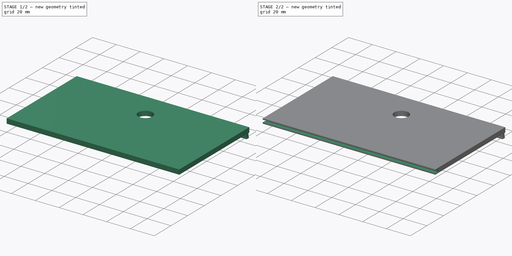
[diagram: build sequence overview — one tinted view per stage of 2, left to right]
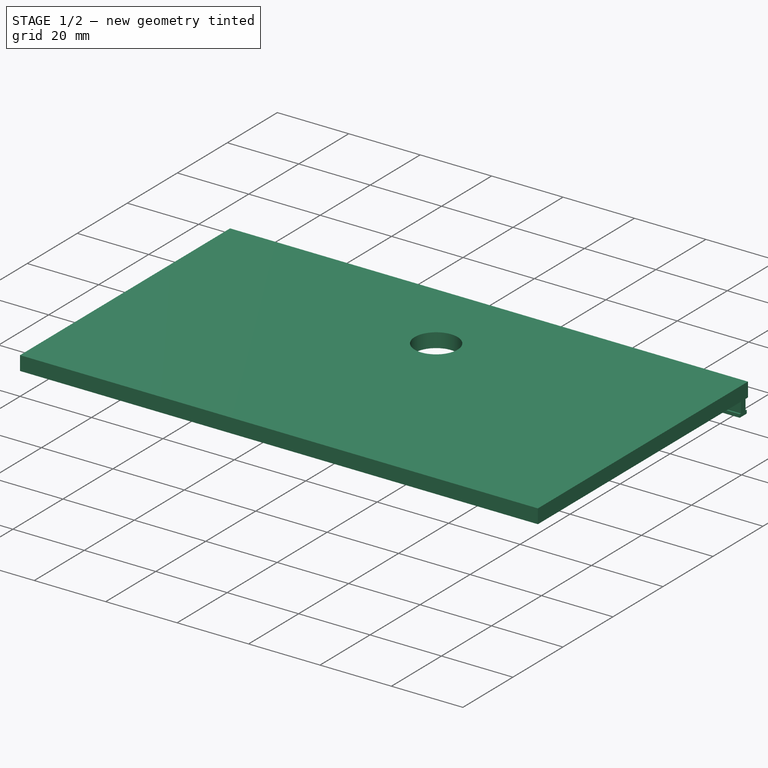
[diagram: stage 1 of 2 — iso view after this stage's code; geometry added in this stage tinted green]
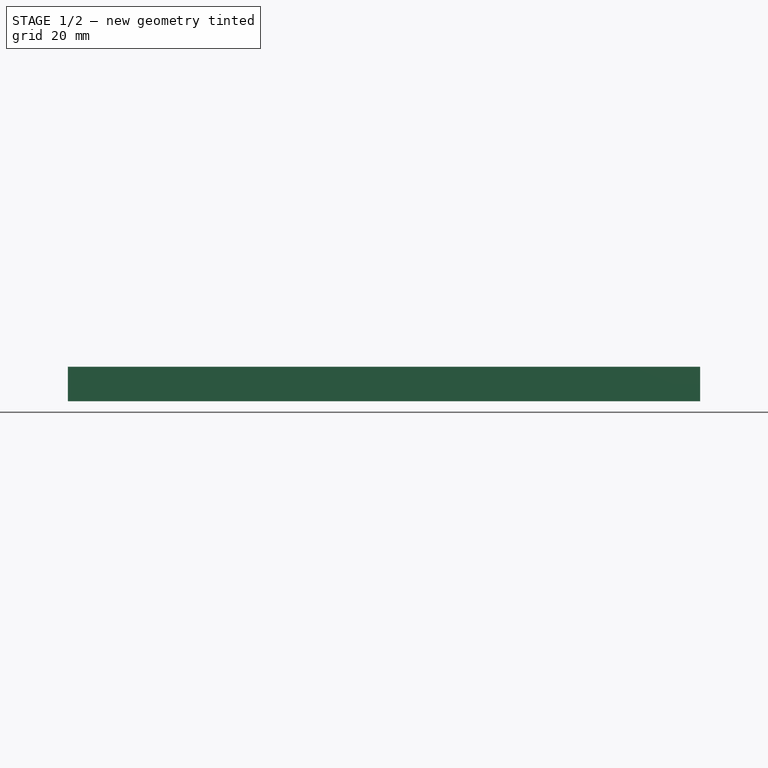
[diagram: stage 1 of 2 — front view after this stage's code; geometry added in this stage tinted green]
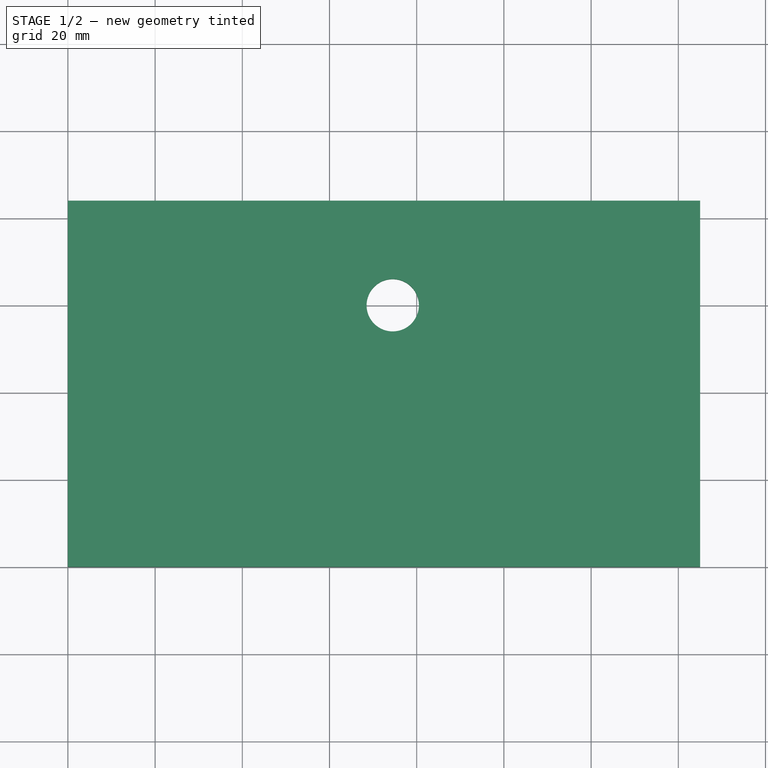
[diagram: stage 1 of 2 — top view after this stage's code; geometry added in this stage tinted green]
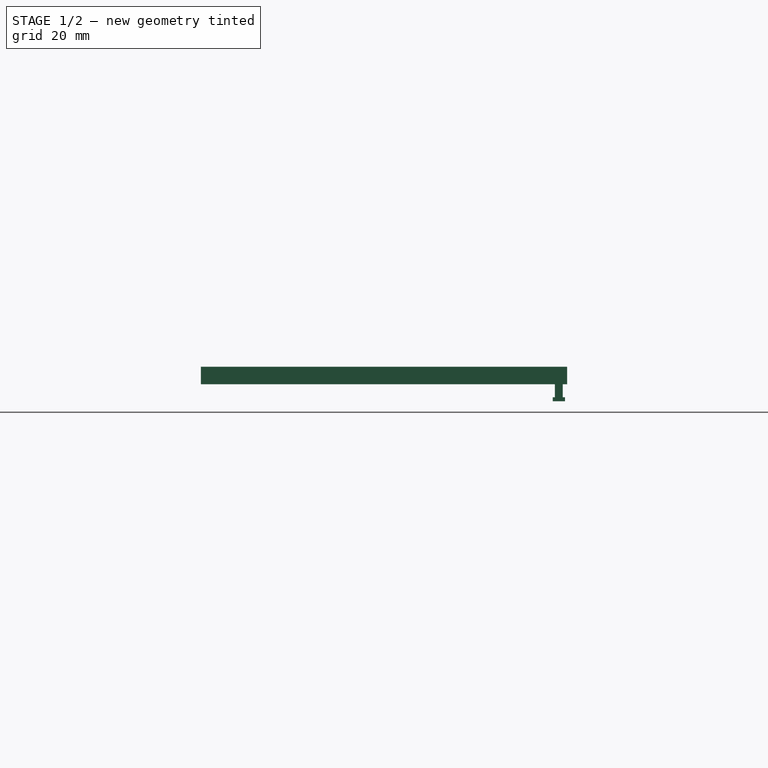
[diagram: stage 1 of 2 — right view after this stage's code; geometry added in this stage tinted green]
FCSTD DOCUMENT  (FreeCAD 1.0R38641 +468 (Git))
Label: Power-Box-Left-Side
License: All rights reserved
LicenseURL: https://en.wikipedia.org/wiki/All_rights_reserved
objects: Sketcher::SketchObject×3, PartDesign::Pad×2, PartDesign::Pocket×1, PartDesign::Body×1
note: 16 computed .brp shape members not serialized (recipe doc carries the construction recipe); baked Part::Feature solids carry a one-line shape summary decoded from their .brp

FEATURE [Sketcher::SketchObject] Sketch150  label="pb-panel"
  ArcFitTolerance = 1e-06
  AttachmentSupport = -> [XY_Plane016]
  FullyConstrained = true
  MakeInternals = false
  MapMode = 5
  sketch-geometry (5):
    g0: LineSegment StartX=0 StartY=84 StartZ=0 EndX=0 EndY=0 EndZ=0
    g1: LineSegment StartX=0 StartY=0 StartZ=0 EndX=145 EndY=0 EndZ=0
    g2: LineSegment StartX=145 StartY=0 StartZ=0 EndX=145 EndY=84 EndZ=0
    g3: LineSegment StartX=145 StartY=84 StartZ=0 EndX=0 EndY=84 EndZ=0
    g4: Circle CenterX=74.5 CenterY=60 CenterZ=0 NormalX=0 NormalY=0 NormalZ=1 AngleXU=0 Radius=6
  constraints (15):
    c: Coincident(g0,g1)
    c: Coincident(g1,g2)
    c: Coincident(g2,g3)
    c: Coincident(g3,g0)
    c: Vertical(g0)
    c: Vertical(g2)
    c: Horizontal(g1)
    c: Horizontal(g3)
    c: Distance(g0,g2) = 145
    c: Distance(g1,g3) = 84
    c: DistanceX(g-1,g0) = 0
    c: DistanceY(g-1,g0) = 0
    c: Diameter(g4) = 12
    c: DistanceX(g0,g4) = 74.5
    c: DistanceY(g0,g4) = 60
FEATURE [PartDesign::Pad] Pad073
  Direction = (0,0,1)
  Length = 4
  Length2 = 10
  Profile = -> Sketch150
  ReferenceAxis = -> Sketch150 [N_Axis]
  Refine = true
  Suppressed = false
  Type = 0
FEATURE [Sketcher::SketchObject] Sketch179  label="pb-top-trail"
  ArcFitTolerance = 1e-06
  AttachmentSupport = -> [YZ_Plane016]
  FullyConstrained = true
  MakeInternals = false
  MapMode = 5
  Placement = pos=(0,0,0) rot=(0.57735,0.57735,0.57735;2.0944rad)
  sketch-geometry (8):
    g0: LineSegment StartX=81.2 StartY=0 StartZ=0 EndX=83 EndY=0 EndZ=0
    g1: LineSegment StartX=83 StartY=0 StartZ=0 EndX=83 EndY=-3 EndZ=0
    g2: LineSegment StartX=83 StartY=-3 StartZ=0 EndX=81.2 EndY=-3 EndZ=0
    g3: LineSegment StartX=81.2 StartY=-3 StartZ=0 EndX=81.2 EndY=0 EndZ=0
    g4: LineSegment StartX=83.5 StartY=-3 StartZ=0 EndX=80.7 EndY=-3 EndZ=0
    g5: LineSegment StartX=80.7 StartY=-3 StartZ=0 EndX=80.7 EndY=-3.9 EndZ=0
    g6: LineSegment StartX=80.7 StartY=-3.9 StartZ=0 EndX=83.5 EndY=-3.9 EndZ=0
    g7: LineSegment StartX=83.5 StartY=-3.9 StartZ=0 EndX=83.5 EndY=-3 EndZ=0
  constraints (24):
    c: Coincident(g0,g1)
    c: Coincident(g1,g2)
    c: Coincident(g2,g3)
    c: Coincident(g3,g0)
    c: Horizontal(g0)
    c: Horizontal(g2)
    c: Vertical(g1)
    c: Vertical(g3)
    c: Distance(g1,g3) = 1.8
    c: Distance(g0,g2) = 3
    c: Coincident(g4,g5)
    c: Coincident(g5,g6)
    c: Coincident(g6,g7)
    c: Coincident(g7,g4)
    c: Horizontal(g4)
    c: Horizontal(g6)
    c: Vertical(g5)
    c: Vertical(g7)
    c: Distance(g5,g7) = 2.8
    c: Distance(g4,g6) = 0.9
    c: DistanceY(g4,g1) = 0
    c: DistanceY(g0,g-1) = 0
    c: DistanceX(g-1,g0) = 83
    c: DistanceX(g1,g4) = 0.5
FEATURE [PartDesign::Pad] Pad084
  BaseFeature = -> Pad073
  Direction = (1,0,0)
  Length = 145
  Length2 = 0
  Profile = -> Sketch179
  ReferenceAxis = -> Sketch179 [N_Axis]
  Refine = true
  Suppressed = false
  Type = 0
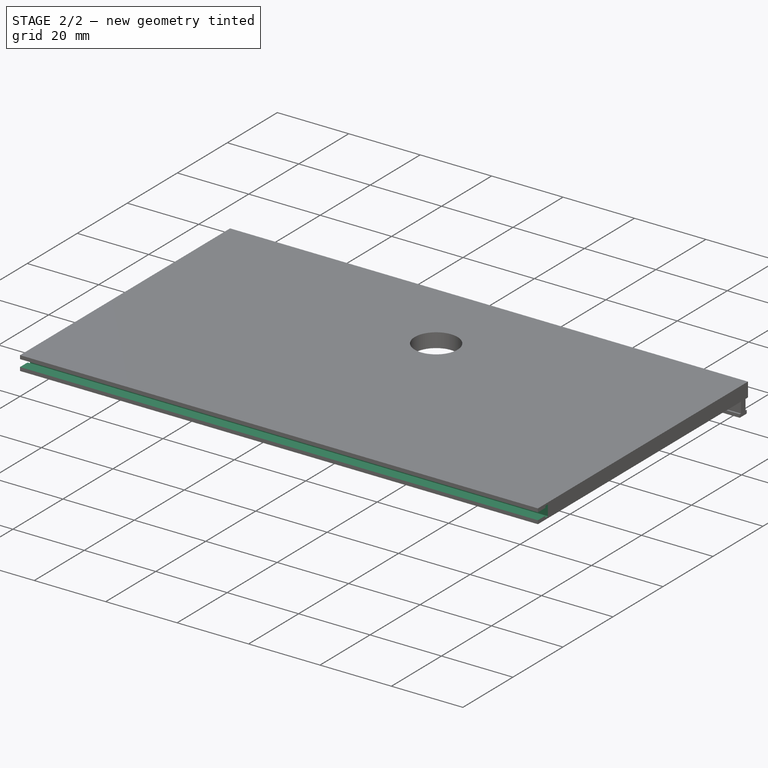
[diagram: stage 2 of 2 — iso view after this stage's code; geometry added in this stage tinted green]
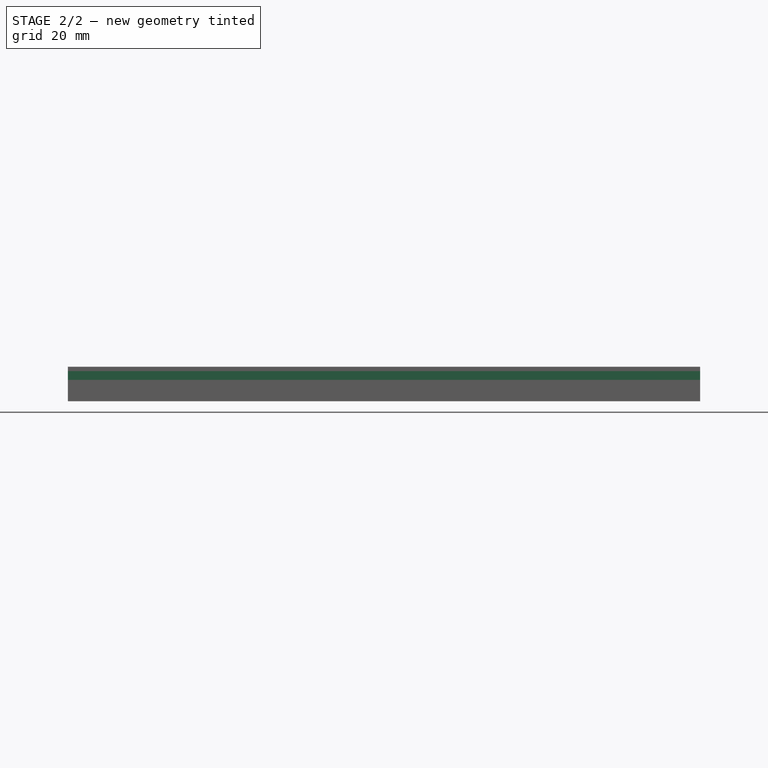
[diagram: stage 2 of 2 — front view after this stage's code; geometry added in this stage tinted green]
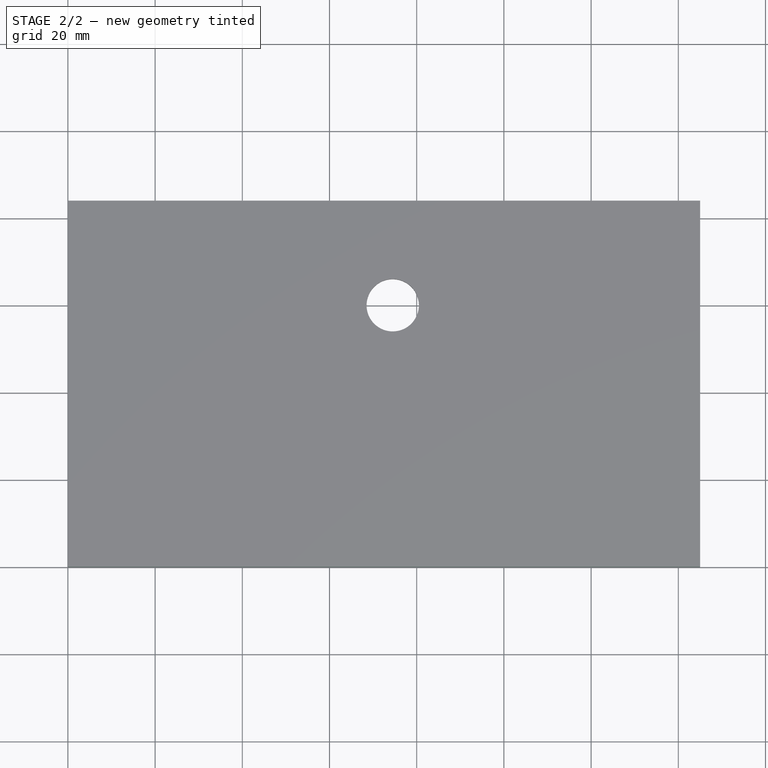
[diagram: stage 2 of 2 — top view after this stage's code; geometry added in this stage tinted green]
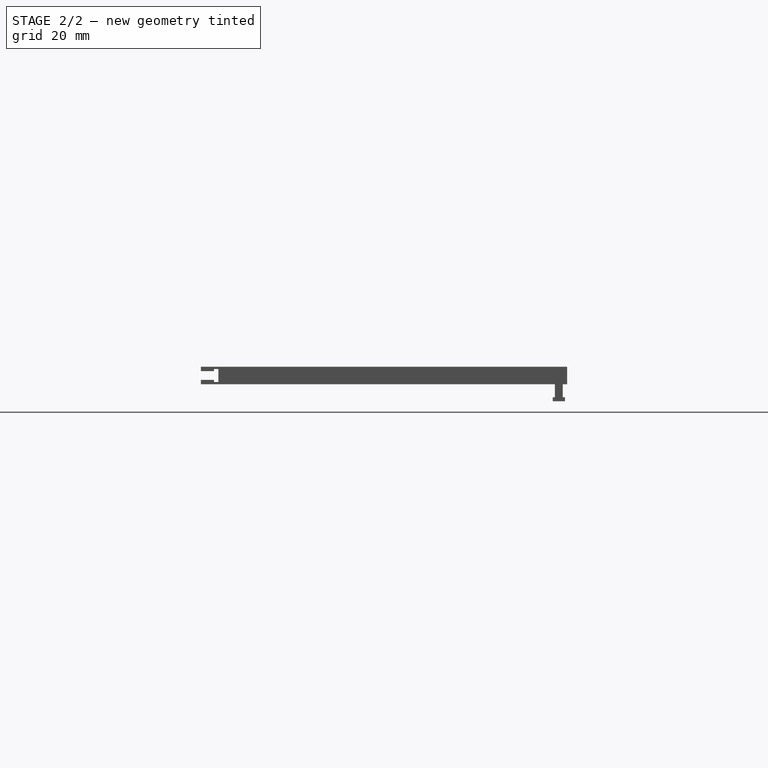
[diagram: stage 2 of 2 — right view after this stage's code; geometry added in this stage tinted green]
FEATURE [Sketcher::SketchObject] Sketch184  label="pb-bottom-trail"
  ArcFitTolerance = 1e-06
  AttachmentSupport = -> [YZ_Plane016]
  FullyConstrained = true
  MakeInternals = false
  MapMode = 5
  Placement = pos=(0,0,0) rot=(0.57735,0.57735,0.57735;2.0944rad)
  sketch-geometry (8):
    g0: LineSegment StartX=3 StartY=3 StartZ=0 EndX=0 EndY=3 EndZ=0
    g1: LineSegment StartX=0 StartY=3 StartZ=0 EndX=0 EndY=1 EndZ=0
    g2: LineSegment StartX=0 StartY=1 StartZ=0 EndX=3 EndY=1 EndZ=0
    g3: LineSegment StartX=3 StartY=1 StartZ=0 EndX=3 EndY=3 EndZ=0
    g4: LineSegment StartX=4 StartY=3.5 StartZ=0 EndX=3 EndY=3.5 EndZ=0
    g5: LineSegment StartX=3 StartY=3.5 StartZ=0 EndX=3 EndY=0.5 EndZ=0
    g6: LineSegment StartX=3 StartY=0.5 StartZ=0 EndX=4 EndY=0.5 EndZ=0
    g7: LineSegment StartX=4 StartY=0.5 StartZ=0 EndX=4 EndY=3.5 EndZ=0
  constraints (24):
    c: Coincident(g0,g1)
    c: Coincident(g1,g2)
    c: Coincident(g2,g3)
    c: Coincident(g3,g0)
    c: Horizontal(g0)
    c: Horizontal(g2)
    c: Vertical(g1)
    c: Vertical(g3)
    c: Distance(g1,g3) = 3
    c: Distance(g0,g2) = 2
    c: Coincident(g4,g5)
    c: Coincident(g5,g6)
    c: Coincident(g6,g7)
    c: Coincident(g7,g4)
    c: Horizontal(g4)
    c: Horizontal(g6)
    c: Vertical(g5)
    c: Vertical(g7)
    c: Distance(g5,g7) = 1
    c: Distance(g4,g6) = 3
    c: DistanceY(g-1,g1) = 1
    c: DistanceX(g-1,g1) = 0
    c: DistanceX(g0,g4) = 0
    c: DistanceY(g0,g4) = 0.5
FEATURE [PartDesign::Pocket] Pocket108
  BaseFeature = -> Pad084
  Direction = (-1,0,0)
  Length = 145
  Length2 = 5
  Profile = -> Sketch184
  ReferenceAxis = -> Sketch184 [N_Axis]
  Refine = true
  Reversed = true
  Suppressed = false
  Type = 0
FEATURE [PartDesign::Body] Body016  label="Power-Box-L"
  AllowCompound = false
  Group = -> [Sketch150,Pad073,Sketch179,Pad084,Sketch184,Pocket108]
  Origin = -> Origin016
  Tip = -> Pocket108
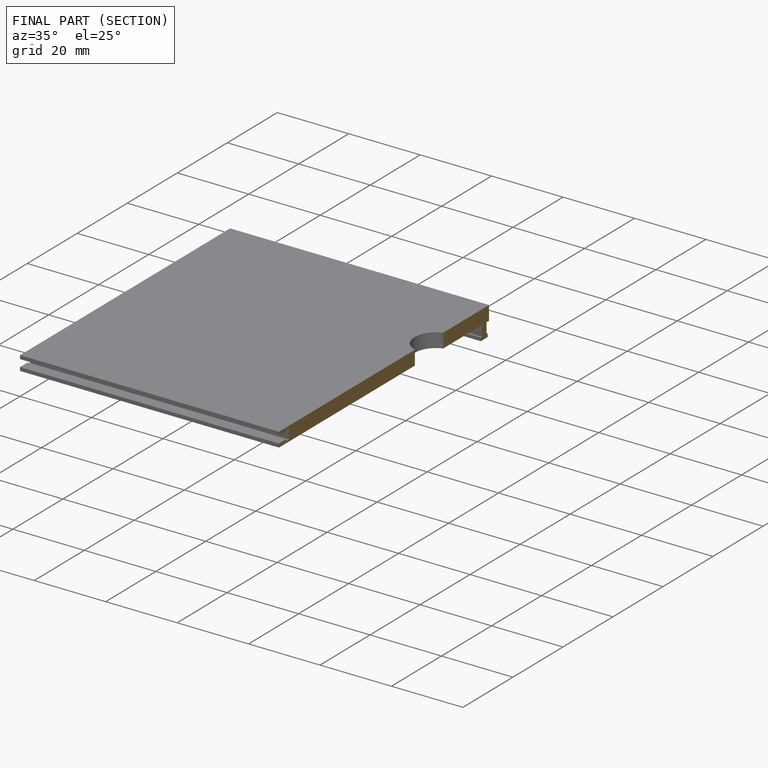
[diagram: finished part — half-section view (interior)]
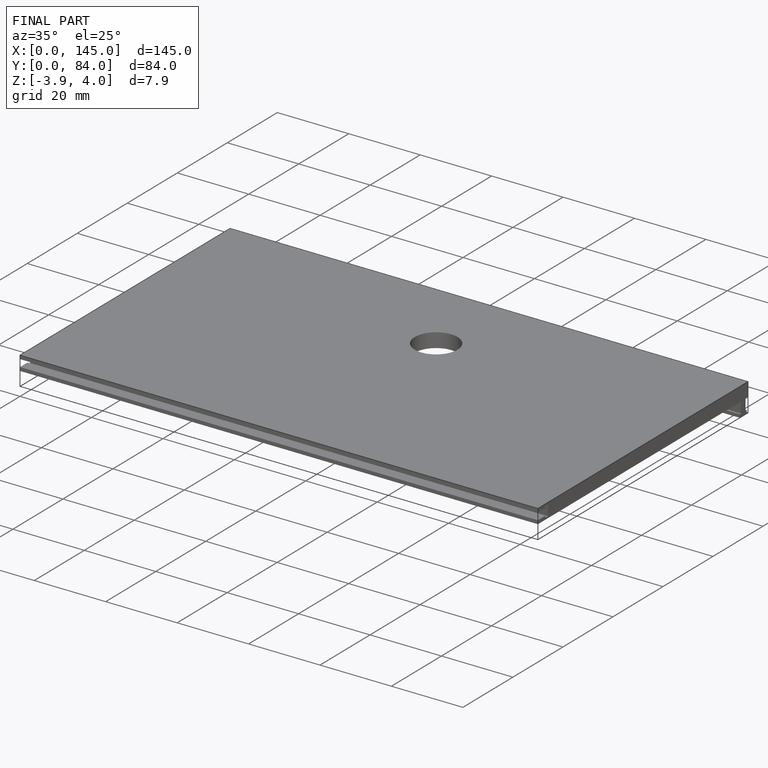
[diagram: finished part — iso view with bounding-box wireframe]
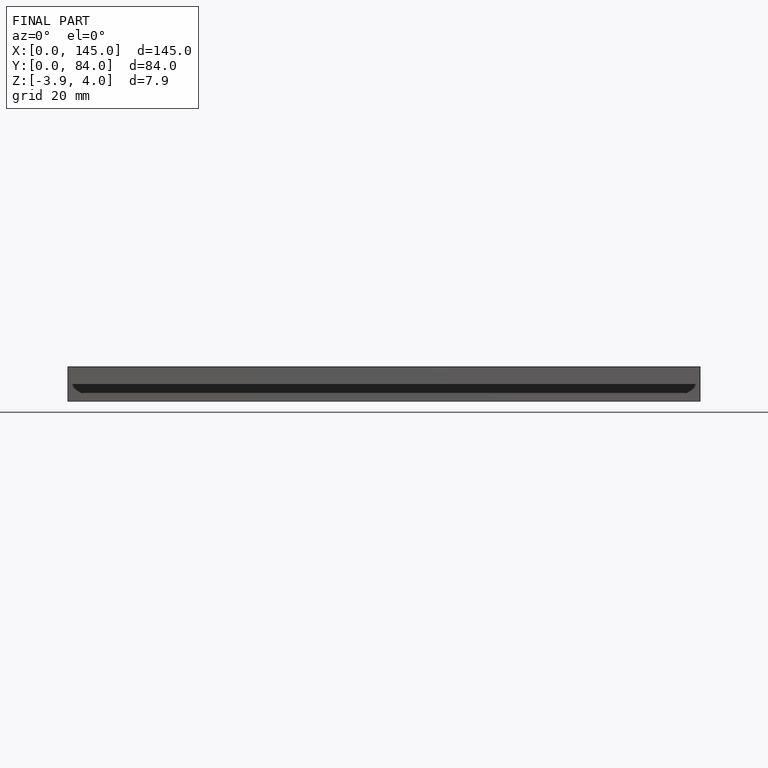
[diagram: finished part — front view with bounding-box wireframe]
